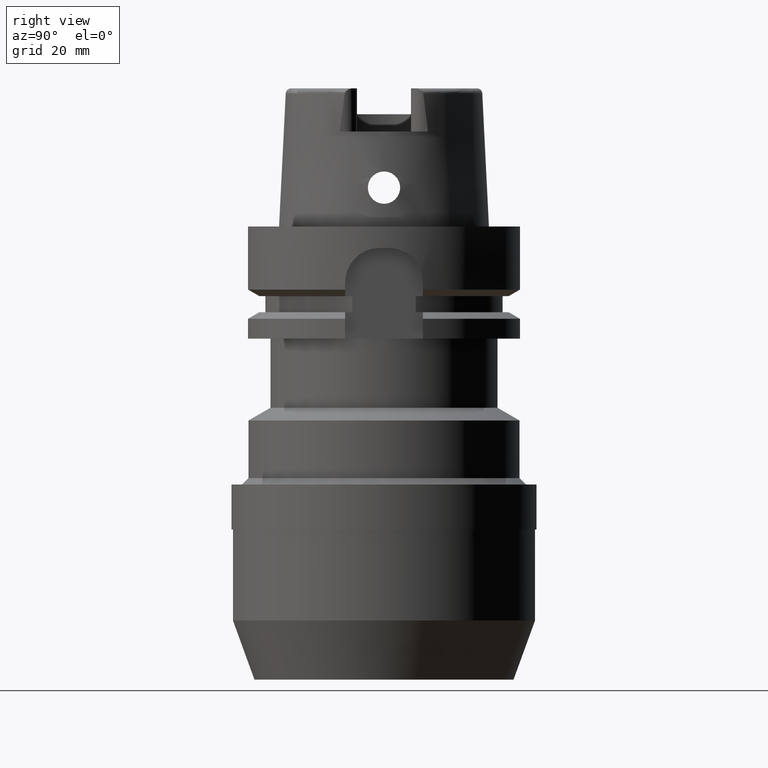
[diagram: clean part render]
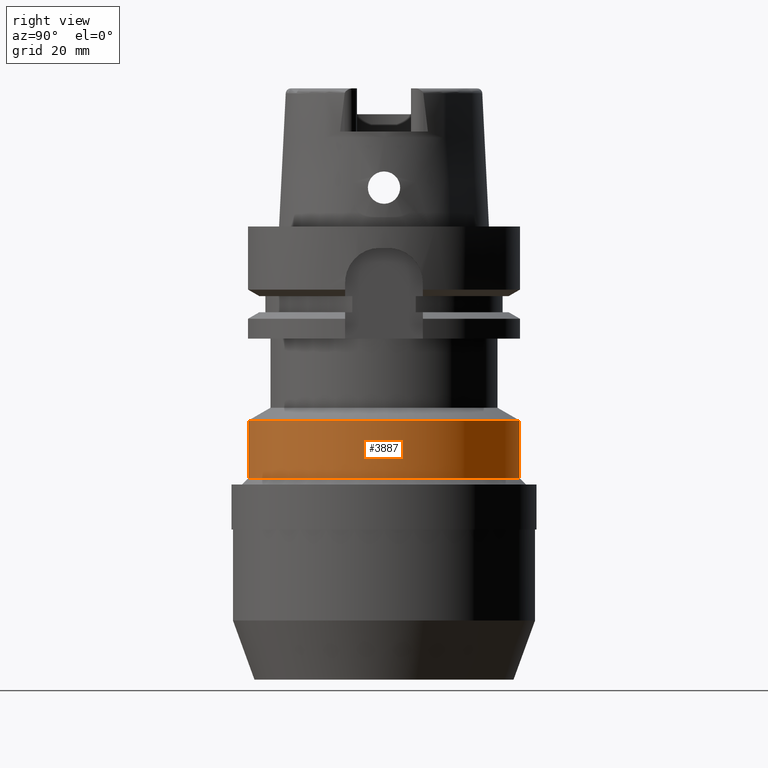
[diagram: same view with one face highlighted and labeled with its STEP entity id]
A machine part, right view. The second image highlights one B-rep face of the part: STEP entity #3887.
In plain terms, the highlighted cylindrical surface (partial cylindrical patch) has radius 31.4 mm, axis along (0, 0, -1).
Its self-contained STEP definition (entity closure, byte-faithful):
#1657=CARTESIAN_POINT('',(0.E0,0.E0,-4.494448637287E1));
#1658=DIRECTION('',(0.E0,0.E0,-1.E0));
#1659=DIRECTION('',(0.E0,1.E0,0.E0));
#1660=AXIS2_PLACEMENT_3D('',#1657,#1658,#1659);
#1696=DIRECTION('',(0.E0,1.053403602499E-13,-1.E0));
#1697=VECTOR('',#1696,1.335551362713E1);
#1698=CARTESIAN_POINT('',(0.E0,-3.14E1,-4.494448637287E1));
#1699=LINE('',#1698,#1697);
#1703=DIRECTION('',(0.E0,-1.053403602499E-13,-1.E0));
#1704=VECTOR('',#1703,1.335551362713E1);
#1705=CARTESIAN_POINT('',(0.E0,3.14E1,-4.494448637287E1));
#1706=LINE('',#1705,#1704);
#1717=CARTESIAN_POINT('',(0.E0,0.E0,-5.83E1));
#1718=DIRECTION('',(0.E0,0.E0,1.E0));
#1719=DIRECTION('',(0.E0,-1.E0,0.E0));
#1720=AXIS2_PLACEMENT_3D('',#1717,#1718,#1719);
#2568=CARTESIAN_POINT('',(0.E0,3.14E1,-5.83E1));
#2569=VERTEX_POINT('',#2568);
#2570=CARTESIAN_POINT('',(0.E0,-3.14E1,-5.83E1));
#2571=VERTEX_POINT('',#2570);
#2572=CARTESIAN_POINT('',(0.E0,3.14E1,-4.494448637287E1));
#2573=VERTEX_POINT('',#2572);
#2574=CARTESIAN_POINT('',(0.E0,-3.14E1,-4.494448637287E1));
#2575=VERTEX_POINT('',#2574);
#3875=CARTESIAN_POINT('',(0.E0,0.E0,3.885E1));
#3876=DIRECTION('',(0.E0,0.E0,-1.E0));
#3877=DIRECTION('',(0.E0,-1.E0,0.E0));
#3878=AXIS2_PLACEMENT_3D('',#3875,#3876,#3877);
#3879=CYLINDRICAL_SURFACE('',#3878,3.14E1);
#3880=ORIENTED_EDGE('',*,*,#3865,.T.);
#3882=ORIENTED_EDGE('',*,*,#3881,.F.);
#3883=ORIENTED_EDGE('',*,*,#3868,.F.);
#3884=ORIENTED_EDGE('',*,*,#3839,.F.);
#3885=EDGE_LOOP('',(#3880,#3882,#3883,#3884));
#3886=FACE_OUTER_BOUND('',#3885,.F.);
#1661=CIRCLE('',#1660,3.14E1);
#1721=CIRCLE('',#1720,3.14E1);
#3839=EDGE_CURVE('',#2573,#2575,#1661,.T.);
#3865=EDGE_CURVE('',#2573,#2569,#1706,.T.);
#3868=EDGE_CURVE('',#2575,#2571,#1699,.T.);
#3881=EDGE_CURVE('',#2571,#2569,#1721,.T.);
#3887=ADVANCED_FACE('',(#3886),#3879,.T.);